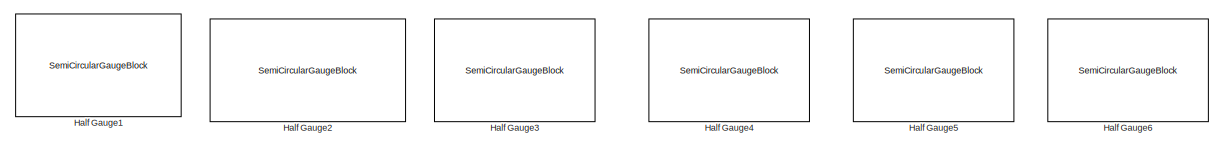
[diagram: root canvas - part 1/5, top right region]
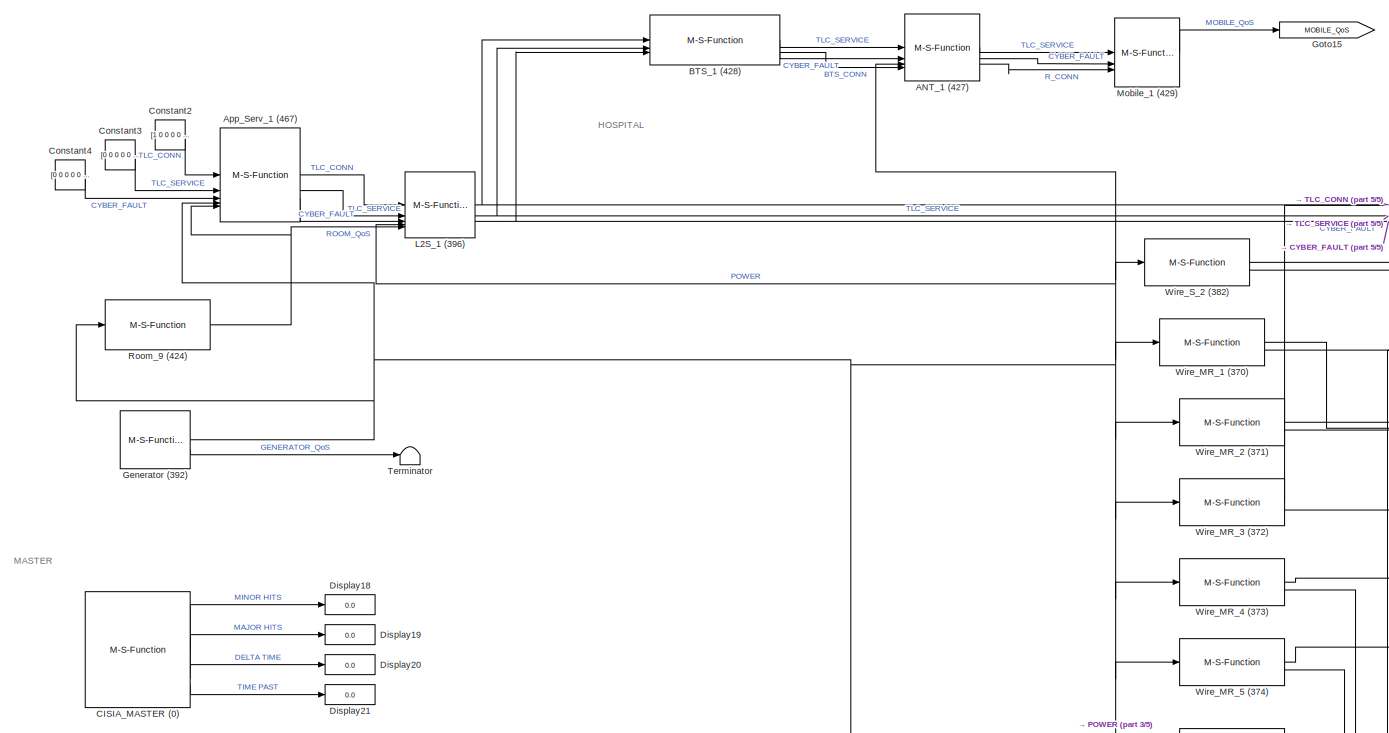
[diagram: root canvas - part 2/5, top left region]
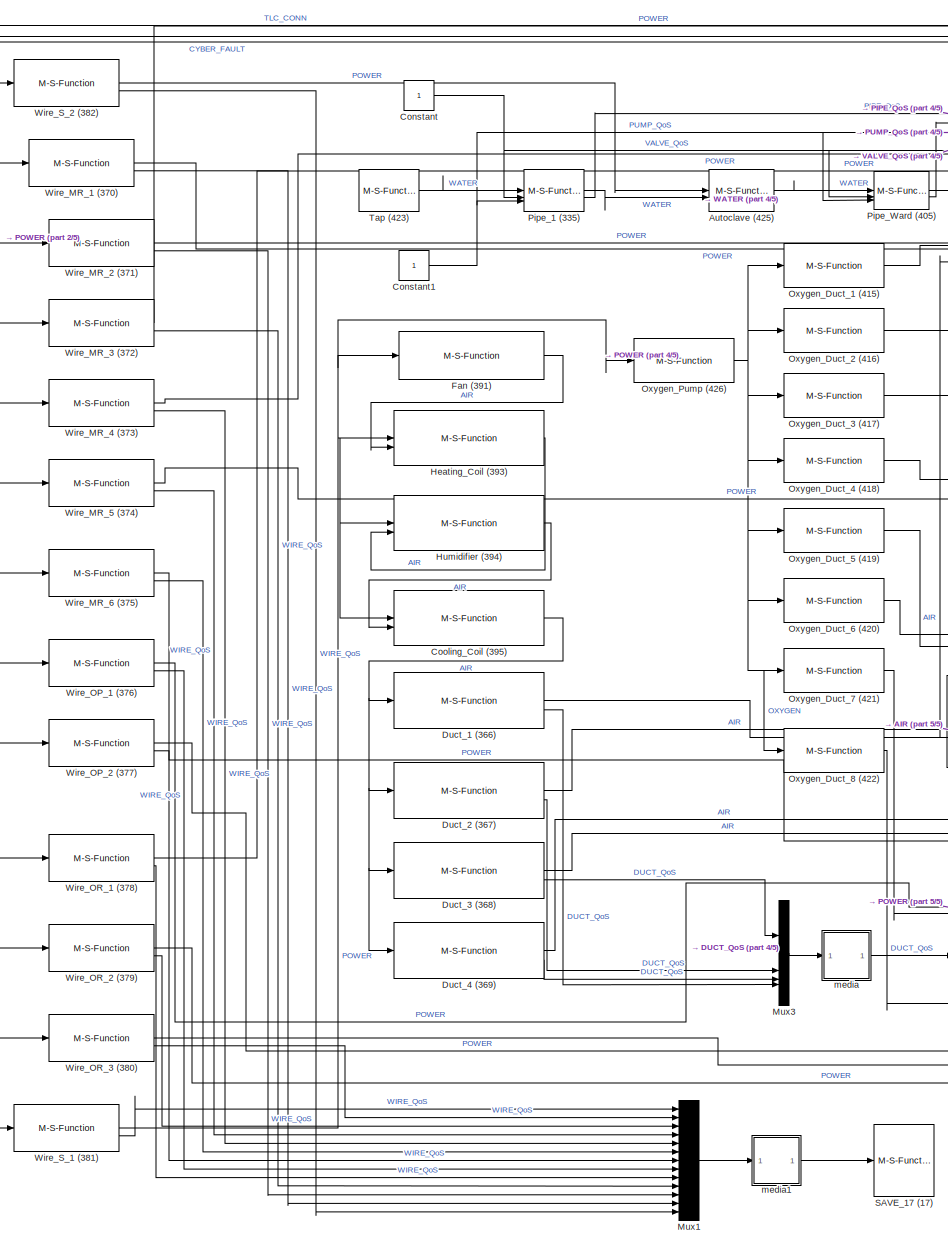
[diagram: root canvas - part 3/5, center side, full height]
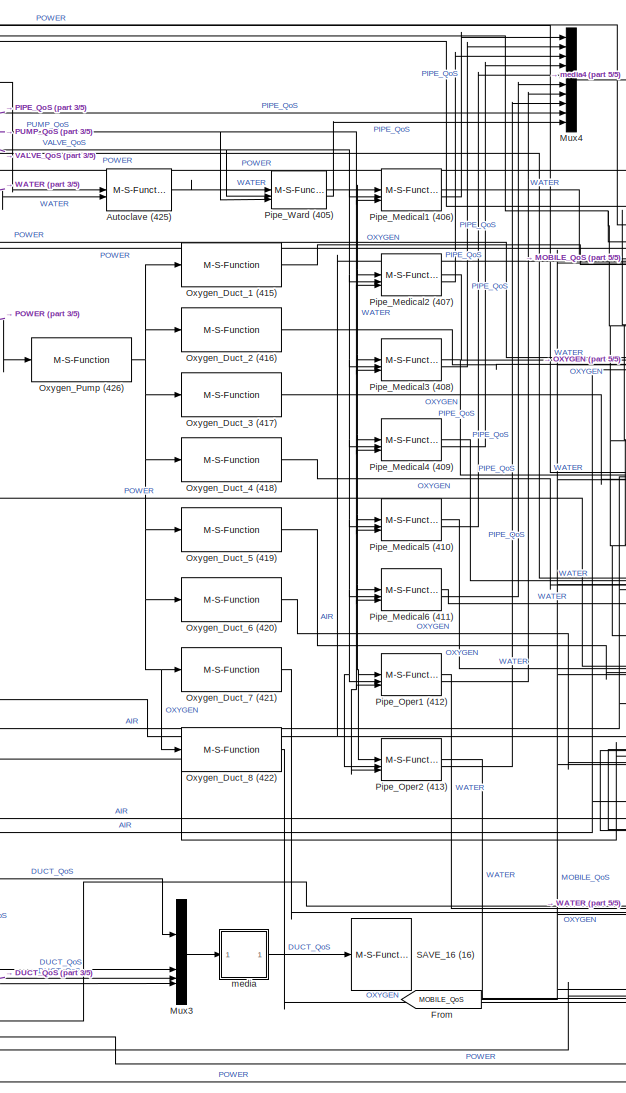
[diagram: root canvas - part 4/5, center side, full height]
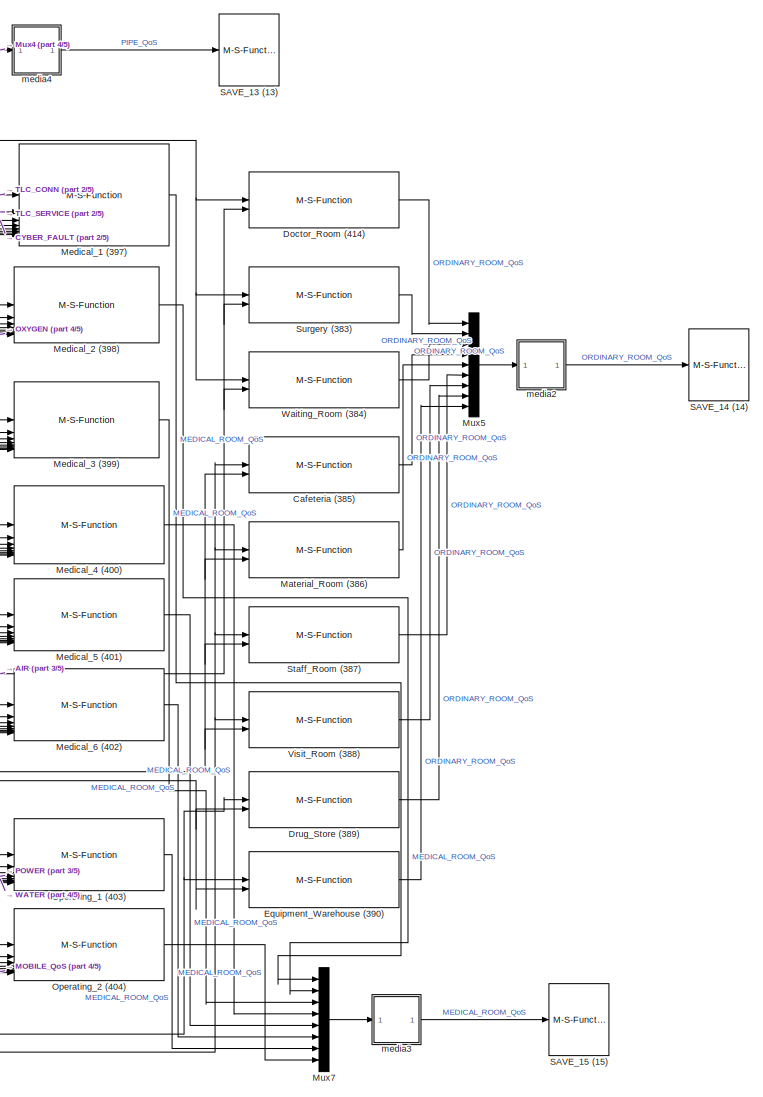
[diagram: root canvas - part 5/5, right side, full height]
MODEL slx_d2d2a2288654
KIND model
CONFIG AbsTol = auto
CONFIG EnableMultiTasking = off
CONFIG FixedStep = auto
CONFIG MaxStep = auto
CONFIG MinStep = auto
CONFIG RelTol = 1e-3
CONFIG SampleTimeConstraint = Unconstrained
CONFIG SolverName = VariableStepAuto
CONFIG StartTime = 0.0
CONFIG StopTime = 10.0
BLOCK [M-S-Function] ANT_1 (427)
  FunctionName = cisia_msfun
  Parameters = Parameter1, Parameter2, Parameter3, resources, Parameter10, codeupdate, step_received, step_computed, dynamic_computed, step_sended, id_entity, id_project, id_type, name_type, color
BLOCK [M-S-Function] App_Serv_1 (467)
  FunctionName = cisia_msfun
  Parameters = Parameter1, Parameter2, Parameter3, resources, Parameter10, codeupdate, step_received, step_computed, dynamic_computed, step_sended, id_entity, id_project, id_type, name_type, color
BLOCK [M-S-Function] Autoclave (425)
  FunctionName = cisia_msfun
  Parameters = Parameter1, Parameter2, Parameter3, resources, Parameter10, codeupdate, step_received, step_computed, dynamic_computed, step_sended, id_entity, id_project, id_type, name_type, color
BLOCK [M-S-Function] BTS_1 (428)
  FunctionName = cisia_msfun
  Parameters = Parameter1, Parameter2, Parameter3, resources, Parameter10, codeupdate, step_received, step_computed, dynamic_computed, step_sended, id_entity, id_project, id_type, name_type, color
BLOCK [M-S-Function] CISIA_MASTER (0)
  FunctionName = cisia_msfun
  Parameters = Parameter1, Parameter2, Parameter3, resources, Parameter4, Parameter5, Parameter6, Parameter7, Parameter8, Parameter9,Parameter11,Parameter12
BLOCK [M-S-Function] Cafeteria (385)
  FunctionName = cisia_msfun
  Parameters = Parameter1, Parameter2, Parameter3, resources, Parameter10, codeupdate, step_received, step_computed, dynamic_computed, step_sended, id_entity, id_project, id_type, name_type, color
BLOCK [Constant] Constant
BLOCK [Constant] Constant1
BLOCK [Constant] Constant2
  Value = [1 0 0 0 0 0 0 0 0 0 0 0 0 0 0 0 0 0 0 0]
BLOCK [Constant] Constant3
  Value = [0 0 0 0 0 0 0 0 0 0 0 0 0 0 0 0 0 0 0 0]
BLOCK [Constant] Constant4
  Value = [0 0 0 0 0 0 0 0 0 0]
BLOCK [M-S-Function] Cooling_Coil (395)
  FunctionName = cisia_msfun
  Parameters = Parameter1, Parameter2, Parameter3, resources, Parameter10, codeupdate, step_received, step_computed, dynamic_computed, step_sended, id_entity, id_project, id_type, name_type, color
BLOCK [Display] Display18
  Decimation = 1
BLOCK [Display] Display19
  Decimation = 1
BLOCK [Display] Display20
  Decimation = 1
BLOCK [Display] Display21
  Decimation = 1
BLOCK [M-S-Function] Doctor_Room (414)
  FunctionName = cisia_msfun
  Parameters = Parameter1, Parameter2, Parameter3, resources, Parameter10, codeupdate, step_received, step_computed, dynamic_computed, step_sended, id_entity, id_project, id_type, name_type, color
BLOCK [M-S-Function] Drug_Store (389)
  FunctionName = cisia_msfun
  Parameters = Parameter1, Parameter2, Parameter3, resources, Parameter10, codeupdate, step_received, step_computed, dynamic_computed, step_sended, id_entity, id_project, id_type, name_type, color
BLOCK [M-S-Function] Duct_1 (366)
  FunctionName = cisia_msfun
  Parameters = Parameter1, Parameter2, Parameter3, resources, Parameter10, codeupdate, step_received, step_computed, dynamic_computed, step_sended, id_entity, id_project, id_type, name_type, color
BLOCK [M-S-Function] Duct_2 (367)
  FunctionName = cisia_msfun
  Parameters = Parameter1, Parameter2, Parameter3, resources, Parameter10, codeupdate, step_received, step_computed, dynamic_computed, step_sended, id_entity, id_project, id_type, name_type, color
BLOCK [M-S-Function] Duct_3 (368)
  FunctionName = cisia_msfun
  Parameters = Parameter1, Parameter2, Parameter3, resources, Parameter10, codeupdate, step_received, step_computed, dynamic_computed, step_sended, id_entity, id_project, id_type, name_type, color
BLOCK [M-S-Function] Duct_4 (369)
  FunctionName = cisia_msfun
  Parameters = Parameter1, Parameter2, Parameter3, resources, Parameter10, codeupdate, step_received, step_computed, dynamic_computed, step_sended, id_entity, id_project, id_type, name_type, color
BLOCK [M-S-Function] Equipment_Warehouse (390)
  FunctionName = cisia_msfun
  Parameters = Parameter1, Parameter2, Parameter3, resources, Parameter10, codeupdate, step_received, step_computed, dynamic_computed, step_sended, id_entity, id_project, id_type, name_type, color
BLOCK [M-S-Function] Fan (391)
  FunctionName = cisia_msfun
  Parameters = Parameter1, Parameter2, Parameter3, resources, Parameter10, codeupdate, step_received, step_computed, dynamic_computed, step_sended, id_entity, id_project, id_type, name_type, color
BLOCK [From] From
  GotoTag = MOBILE_QoS
BLOCK [M-S-Function] Generator (392)
  FunctionName = cisia_msfun
  Parameters = Parameter1, Parameter2, Parameter3, resources, Parameter10, codeupdate, step_received, step_computed, dynamic_computed, step_sended, id_entity, id_project, id_type, name_type, color
BLOCK [Goto] Goto15
  GotoTag = MOBILE_QoS
BLOCK [SemiCircularGaugeBlock] Half Gauge1
  ScaleMax = 1
BLOCK [SemiCircularGaugeBlock] Half Gauge2
  ScaleMax = 1
BLOCK [SemiCircularGaugeBlock] Half Gauge3
  ScaleMax = 1
BLOCK [SemiCircularGaugeBlock] Half Gauge4
  ScaleMax = 1
BLOCK [SemiCircularGaugeBlock] Half Gauge5
  ScaleMax = 1
BLOCK [SemiCircularGaugeBlock] Half Gauge6
  ScaleMax = 1
BLOCK [M-S-Function] Heating_Coil (393)
  FunctionName = cisia_msfun
  Parameters = Parameter1, Parameter2, Parameter3, resources, Parameter10, codeupdate, step_received, step_computed, dynamic_computed, step_sended, id_entity, id_project, id_type, name_type, color
BLOCK [M-S-Function] Humidifier (394)
  FunctionName = cisia_msfun
  Parameters = Parameter1, Parameter2, Parameter3, resources, Parameter10, codeupdate, step_received, step_computed, dynamic_computed, step_sended, id_entity, id_project, id_type, name_type, color
BLOCK [M-S-Function] L2S_1 (396)
  FunctionName = cisia_msfun
  Parameters = Parameter1, Parameter2, Parameter3, resources, Parameter10, codeupdate, step_received, step_computed, dynamic_computed, step_sended, id_entity, id_project, id_type, name_type, color
BLOCK [M-S-Function] Material_Room (386)
  FunctionName = cisia_msfun
  Parameters = Parameter1, Parameter2, Parameter3, resources, Parameter10, codeupdate, step_received, step_computed, dynamic_computed, step_sended, id_entity, id_project, id_type, name_type, color
BLOCK [M-S-Function] Medical_1 (397)
  FunctionName = cisia_msfun
  Parameters = Parameter1, Parameter2, Parameter3, resources, Parameter10, codeupdate, step_received, step_computed, dynamic_computed, step_sended, id_entity, id_project, id_type, name_type, color
BLOCK [M-S-Function] Medical_2 (398)
  FunctionName = cisia_msfun
  Parameters = Parameter1, Parameter2, Parameter3, resources, Parameter10, codeupdate, step_received, step_computed, dynamic_computed, step_sended, id_entity, id_project, id_type, name_type, color
BLOCK [M-S-Function] Medical_3 (399)
  FunctionName = cisia_msfun
  Parameters = Parameter1, Parameter2, Parameter3, resources, Parameter10, codeupdate, step_received, step_computed, dynamic_computed, step_sended, id_entity, id_project, id_type, name_type, color
BLOCK [M-S-Function] Medical_4 (400)
  FunctionName = cisia_msfun
  Parameters = Parameter1, Parameter2, Parameter3, resources, Parameter10, codeupdate, step_received, step_computed, dynamic_computed, step_sended, id_entity, id_project, id_type, name_type, color
BLOCK [M-S-Function] Medical_5 (401)
  FunctionName = cisia_msfun
  Parameters = Parameter1, Parameter2, Parameter3, resources, Parameter10, codeupdate, step_received, step_computed, dynamic_computed, step_sended, id_entity, id_project, id_type, name_type, color
BLOCK [M-S-Function] Medical_6 (402)
  FunctionName = cisia_msfun
  Parameters = Parameter1, Parameter2, Parameter3, resources, Parameter10, codeupdate, step_received, step_computed, dynamic_computed, step_sended, id_entity, id_project, id_type, name_type, color
BLOCK [M-S-Function] Mobile_1 (429)
  FunctionName = cisia_msfun
  Parameters = Parameter1, Parameter2, Parameter3, resources, Parameter10, codeupdate, step_received, step_computed, dynamic_computed, step_sended, id_entity, id_project, id_type, name_type, color
BLOCK [Mux] Mux1
  DisplayOption = bar
  Inputs = 13
BLOCK [Mux] Mux3
  DisplayOption = bar
BLOCK [Mux] Mux4
  DisplayOption = bar
  Inputs = 10
BLOCK [Mux] Mux5
  DisplayOption = bar
  Inputs = 9
BLOCK [Mux] Mux7
  DisplayOption = bar
  Inputs = 8
BLOCK [M-S-Function] Operating_1 (403)
  FunctionName = cisia_msfun
  Parameters = Parameter1, Parameter2, Parameter3, resources, Parameter10, codeupdate, step_received, step_computed, dynamic_computed, step_sended, id_entity, id_project, id_type, name_type, color
BLOCK [M-S-Function] Operating_2 (404)
  FunctionName = cisia_msfun
  Parameters = Parameter1, Parameter2, Parameter3, resources, Parameter10, codeupdate, step_received, step_computed, dynamic_computed, step_sended, id_entity, id_project, id_type, name_type, color
BLOCK [M-S-Function] Oxygen_Duct_1 (415)
  FunctionName = cisia_msfun
  Parameters = Parameter1, Parameter2, Parameter3, resources, Parameter10, codeupdate, step_received, step_computed, dynamic_computed, step_sended, id_entity, id_project, id_type, name_type, color
BLOCK [M-S-Function] Oxygen_Duct_2 (416)
  FunctionName = cisia_msfun
  Parameters = Parameter1, Parameter2, Parameter3, resources, Parameter10, codeupdate, step_received, step_computed, dynamic_computed, step_sended, id_entity, id_project, id_type, name_type, color
BLOCK [M-S-Function] Oxygen_Duct_3 (417)
  FunctionName = cisia_msfun
  Parameters = Parameter1, Parameter2, Parameter3, resources, Parameter10, codeupdate, step_received, step_computed, dynamic_computed, step_sended, id_entity, id_project, id_type, name_type, color
BLOCK [M-S-Function] Oxygen_Duct_4 (418)
  FunctionName = cisia_msfun
  Parameters = Parameter1, Parameter2, Parameter3, resources, Parameter10, codeupdate, step_received, step_computed, dynamic_computed, step_sended, id_entity, id_project, id_type, name_type, color
BLOCK [M-S-Function] Oxygen_Duct_5 (419)
  FunctionName = cisia_msfun
  Parameters = Parameter1, Parameter2, Parameter3, resources, Parameter10, codeupdate, step_received, step_computed, dynamic_computed, step_sended, id_entity, id_project, id_type, name_type, color
BLOCK [M-S-Function] Oxygen_Duct_6 (420)
  FunctionName = cisia_msfun
  Parameters = Parameter1, Parameter2, Parameter3, resources, Parameter10, codeupdate, step_received, step_computed, dynamic_computed, step_sended, id_entity, id_project, id_type, name_type, color
BLOCK [M-S-Function] Oxygen_Duct_7 (421)
  FunctionName = cisia_msfun
  Parameters = Parameter1, Parameter2, Parameter3, resources, Parameter10, codeupdate, step_received, step_computed, dynamic_computed, step_sended, id_entity, id_project, id_type, name_type, color
BLOCK [M-S-Function] Oxygen_Duct_8 (422)
  FunctionName = cisia_msfun
  Parameters = Parameter1, Parameter2, Parameter3, resources, Parameter10, codeupdate, step_received, step_computed, dynamic_computed, step_sended, id_entity, id_project, id_type, name_type, color
BLOCK [M-S-Function] Oxygen_Pump (426)
  FunctionName = cisia_msfun
  Parameters = Parameter1, Parameter2, Parameter3, resources, Parameter10, codeupdate, step_received, step_computed, dynamic_computed, step_sended, id_entity, id_project, id_type, name_type, color
BLOCK [M-S-Function] Pipe_1 (335)
  FunctionName = cisia_msfun
  Parameters = Parameter1, Parameter2, Parameter3, resources, Parameter10, codeupdate, step_received, step_computed, dynamic_computed, step_sended, id_entity, id_project, id_type, name_type, color
BLOCK [M-S-Function] Pipe_Medical1 (406)
  FunctionName = cisia_msfun
  Parameters = Parameter1, Parameter2, Parameter3, resources, Parameter10, codeupdate, step_received, step_computed, dynamic_computed, step_sended, id_entity, id_project, id_type, name_type, color
BLOCK [M-S-Function] Pipe_Medical2 (407)
  FunctionName = cisia_msfun
  Parameters = Parameter1, Parameter2, Parameter3, resources, Parameter10, codeupdate, step_received, step_computed, dynamic_computed, step_sended, id_entity, id_project, id_type, name_type, color
BLOCK [M-S-Function] Pipe_Medical3 (408)
  FunctionName = cisia_msfun
  Parameters = Parameter1, Parameter2, Parameter3, resources, Parameter10, codeupdate, step_received, step_computed, dynamic_computed, step_sended, id_entity, id_project, id_type, name_type, color
BLOCK [M-S-Function] Pipe_Medical4 (409)
  FunctionName = cisia_msfun
  Parameters = Parameter1, Parameter2, Parameter3, resources, Parameter10, codeupdate, step_received, step_computed, dynamic_computed, step_sended, id_entity, id_project, id_type, name_type, color
BLOCK [M-S-Function] Pipe_Medical5 (410)
  FunctionName = cisia_msfun
  Parameters = Parameter1, Parameter2, Parameter3, resources, Parameter10, codeupdate, step_received, step_computed, dynamic_computed, step_sended, id_entity, id_project, id_type, name_type, color
BLOCK [M-S-Function] Pipe_Medical6 (411)
  FunctionName = cisia_msfun
  Parameters = Parameter1, Parameter2, Parameter3, resources, Parameter10, codeupdate, step_received, step_computed, dynamic_computed, step_sended, id_entity, id_project, id_type, name_type, color
BLOCK [M-S-Function] Pipe_Oper1 (412)
  FunctionName = cisia_msfun
  Parameters = Parameter1, Parameter2, Parameter3, resources, Parameter10, codeupdate, step_received, step_computed, dynamic_computed, step_sended, id_entity, id_project, id_type, name_type, color
BLOCK [M-S-Function] Pipe_Oper2 (413)
  FunctionName = cisia_msfun
  Parameters = Parameter1, Parameter2, Parameter3, resources, Parameter10, codeupdate, step_received, step_computed, dynamic_computed, step_sended, id_entity, id_project, id_type, name_type, color
BLOCK [M-S-Function] Pipe_Ward (405)
  FunctionName = cisia_msfun
  Parameters = Parameter1, Parameter2, Parameter3, resources, Parameter10, codeupdate, step_received, step_computed, dynamic_computed, step_sended, id_entity, id_project, id_type, name_type, color
BLOCK [M-S-Function] Room_9 (424)
  FunctionName = cisia_msfun
  Parameters = Parameter1, Parameter2, Parameter3, resources, Parameter10, codeupdate, step_received, step_computed, dynamic_computed, step_sended, id_entity, id_project, id_type, name_type, color
BLOCK [M-S-Function] SAVE_13 (13)
  FunctionName = cisia_msfun
  Parameters = Parameter1, Parameter2, Parameter3, Parameter4,Parameter5,Parameter6,Parameter7
BLOCK [M-S-Function] SAVE_14 (14)
  FunctionName = cisia_msfun
  Parameters = Parameter1, Parameter2, Parameter3, Parameter4,Parameter5,Parameter6,Parameter7
BLOCK [M-S-Function] SAVE_15 (15)
  FunctionName = cisia_msfun
  Parameters = Parameter1, Parameter2, Parameter3, Parameter4,Parameter5,Parameter6,Parameter7
BLOCK [M-S-Function] SAVE_16 (16)
  FunctionName = cisia_msfun
  Parameters = Parameter1, Parameter2, Parameter3, Parameter4,Parameter5,Parameter6,Parameter7
BLOCK [M-S-Function] SAVE_17 (17)
  FunctionName = cisia_msfun
  Parameters = Parameter1, Parameter2, Parameter3, Parameter4,Parameter5,Parameter6,Parameter7
BLOCK [M-S-Function] Staff_Room (387)
  FunctionName = cisia_msfun
  Parameters = Parameter1, Parameter2, Parameter3, resources, Parameter10, codeupdate, step_received, step_computed, dynamic_computed, step_sended, id_entity, id_project, id_type, name_type, color
BLOCK [M-S-Function] Surgery (383)
  FunctionName = cisia_msfun
  Parameters = Parameter1, Parameter2, Parameter3, resources, Parameter10, codeupdate, step_received, step_computed, dynamic_computed, step_sended, id_entity, id_project, id_type, name_type, color
BLOCK [M-S-Function] Tap (423)
  FunctionName = cisia_msfun
  Parameters = Parameter1, Parameter2, Parameter3, resources, Parameter10, codeupdate, step_received, step_computed, dynamic_computed, step_sended, id_entity, id_project, id_type, name_type, color
BLOCK [Terminator] Terminator
BLOCK [M-S-Function] Visit_Room (388)
  FunctionName = cisia_msfun
  Parameters = Parameter1, Parameter2, Parameter3, resources, Parameter10, codeupdate, step_received, step_computed, dynamic_computed, step_sended, id_entity, id_project, id_type, name_type, color
BLOCK [M-S-Function] Waiting_Room (384)
  FunctionName = cisia_msfun
  Parameters = Parameter1, Parameter2, Parameter3, resources, Parameter10, codeupdate, step_received, step_computed, dynamic_computed, step_sended, id_entity, id_project, id_type, name_type, color
BLOCK [M-S-Function] Wire_MR_1 (370)
  FunctionName = cisia_msfun
  Parameters = Parameter1, Parameter2, Parameter3, resources, Parameter10, codeupdate, step_received, step_computed, dynamic_computed, step_sended, id_entity, id_project, id_type, name_type, color
BLOCK [M-S-Function] Wire_MR_2 (371)
  FunctionName = cisia_msfun
  Parameters = Parameter1, Parameter2, Parameter3, resources, Parameter10, codeupdate, step_received, step_computed, dynamic_computed, step_sended, id_entity, id_project, id_type, name_type, color
BLOCK [M-S-Function] Wire_MR_3 (372)
  FunctionName = cisia_msfun
  Parameters = Parameter1, Parameter2, Parameter3, resources, Parameter10, codeupdate, step_received, step_computed, dynamic_computed, step_sended, id_entity, id_project, id_type, name_type, color
BLOCK [M-S-Function] Wire_MR_4 (373)
  FunctionName = cisia_msfun
  Parameters = Parameter1, Parameter2, Parameter3, resources, Parameter10, codeupdate, step_received, step_computed, dynamic_computed, step_sended, id_entity, id_project, id_type, name_type, color
BLOCK [M-S-Function] Wire_MR_5 (374)
  FunctionName = cisia_msfun
  Parameters = Parameter1, Parameter2, Parameter3, resources, Parameter10, codeupdate, step_received, step_computed, dynamic_computed, step_sended, id_entity, id_project, id_type, name_type, color
BLOCK [M-S-Function] Wire_MR_6 (375)
  FunctionName = cisia_msfun
  Parameters = Parameter1, Parameter2, Parameter3, resources, Parameter10, codeupdate, step_received, step_computed, dynamic_computed, step_sended, id_entity, id_project, id_type, name_type, color
BLOCK [M-S-Function] Wire_OP_1 (376)
  FunctionName = cisia_msfun
  Parameters = Parameter1, Parameter2, Parameter3, resources, Parameter10, codeupdate, step_received, step_computed, dynamic_computed, step_sended, id_entity, id_project, id_type, name_type, color
BLOCK [M-S-Function] Wire_OP_2 (377)
  FunctionName = cisia_msfun
  Parameters = Parameter1, Parameter2, Parameter3, resources, Parameter10, codeupdate, step_received, step_computed, dynamic_computed, step_sended, id_entity, id_project, id_type, name_type, color
BLOCK [M-S-Function] Wire_OR_1 (378)
  FunctionName = cisia_msfun
  Parameters = Parameter1, Parameter2, Parameter3, resources, Parameter10, codeupdate, step_received, step_computed, dynamic_computed, step_sended, id_entity, id_project, id_type, name_type, color
BLOCK [M-S-Function] Wire_OR_2 (379)
  FunctionName = cisia_msfun
  Parameters = Parameter1, Parameter2, Parameter3, resources, Parameter10, codeupdate, step_received, step_computed, dynamic_computed, step_sended, id_entity, id_project, id_type, name_type, color
BLOCK [M-S-Function] Wire_OR_3 (380)
  FunctionName = cisia_msfun
  Parameters = Parameter1, Parameter2, Parameter3, resources, Parameter10, codeupdate, step_received, step_computed, dynamic_computed, step_sended, id_entity, id_project, id_type, name_type, color
BLOCK [M-S-Function] Wire_S_1 (381)
  FunctionName = cisia_msfun
  Parameters = Parameter1, Parameter2, Parameter3, resources, Parameter10, codeupdate, step_received, step_computed, dynamic_computed, step_sended, id_entity, id_project, id_type, name_type, color
BLOCK [M-S-Function] Wire_S_2 (382)
  FunctionName = cisia_msfun
  Parameters = Parameter1, Parameter2, Parameter3, resources, Parameter10, codeupdate, step_received, step_computed, dynamic_computed, step_sended, id_entity, id_project, id_type, name_type, color
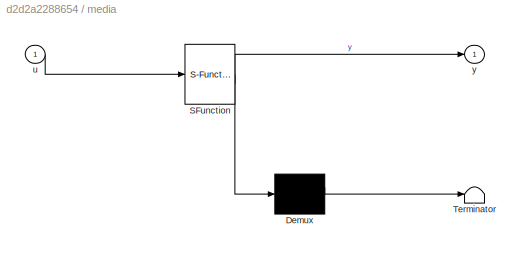
BLOCK [SubSystem] media
  ErrorFcn = Stateflow.Translate.translate
  LibrarySourceBlock = simulink/User-Defined\nFunctions/MATLAB Function
  PermitHierarchicalResolution = ExplicitOnly
  SFBlockType = MATLAB Function
  TreatAsAtomicUnit = on
BLOCK [Demux] media/ Demux 
  Outputs = 1
BLOCK [S-Function] media/ SFunction 
  EnableBusSupport = on
  FunctionName = sf_sfun
  PortCounts = [1 2]
  SFcnIsStateOwnerBlock = off
  SFunctionDeploymentMode = off
  Tag = Stateflow S-Function 2
BLOCK [Terminator] media/ Terminator 
BLOCK [Inport] media/u
BLOCK [Outport] media/y
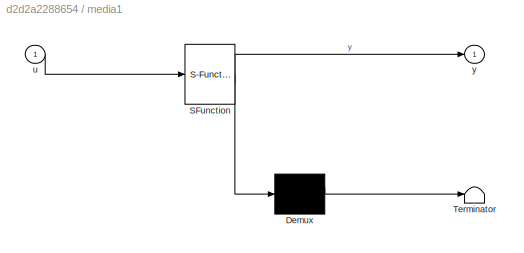
BLOCK [SubSystem] media1
  ErrorFcn = Stateflow.Translate.translate
  LibrarySourceBlock = simulink/User-Defined\nFunctions/MATLAB Function
  PermitHierarchicalResolution = ExplicitOnly
  SFBlockType = MATLAB Function
  TreatAsAtomicUnit = on
BLOCK [Demux] media1/ Demux 
  Outputs = 1
BLOCK [S-Function] media1/ SFunction 
  EnableBusSupport = on
  FunctionName = sf_sfun
  PortCounts = [1 2]
  SFcnIsStateOwnerBlock = off
  SFunctionDeploymentMode = off
  Tag = Stateflow S-Function 1
BLOCK [Terminator] media1/ Terminator 
BLOCK [Inport] media1/u
BLOCK [Outport] media1/y
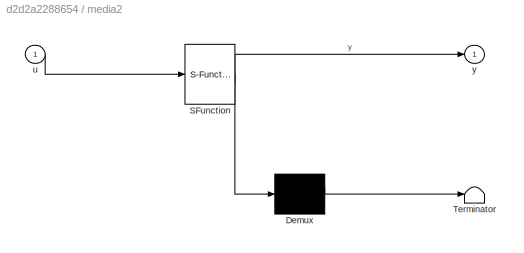
BLOCK [SubSystem] media2
  ErrorFcn = Stateflow.Translate.translate
  LibrarySourceBlock = simulink/User-Defined\nFunctions/MATLAB Function
  PermitHierarchicalResolution = ExplicitOnly
  SFBlockType = MATLAB Function
  TreatAsAtomicUnit = on
BLOCK [Demux] media2/ Demux 
  Outputs = 1
BLOCK [S-Function] media2/ SFunction 
  EnableBusSupport = on
  FunctionName = sf_sfun
  PortCounts = [1 2]
  SFcnIsStateOwnerBlock = off
  SFunctionDeploymentMode = off
  Tag = Stateflow S-Function 3
BLOCK [Terminator] media2/ Terminator 
BLOCK [Inport] media2/u
BLOCK [Outport] media2/y
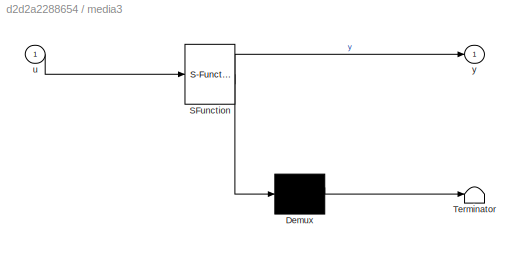
BLOCK [SubSystem] media3
  ErrorFcn = Stateflow.Translate.translate
  LibrarySourceBlock = simulink/User-Defined\nFunctions/MATLAB Function
  PermitHierarchicalResolution = ExplicitOnly
  SFBlockType = MATLAB Function
  TreatAsAtomicUnit = on
BLOCK [Demux] media3/ Demux 
  Outputs = 1
BLOCK [S-Function] media3/ SFunction 
  EnableBusSupport = on
  FunctionName = sf_sfun
  PortCounts = [1 2]
  SFcnIsStateOwnerBlock = off
  SFunctionDeploymentMode = off
  Tag = Stateflow S-Function 4
BLOCK [Terminator] media3/ Terminator 
BLOCK [Inport] media3/u
BLOCK [Outport] media3/y
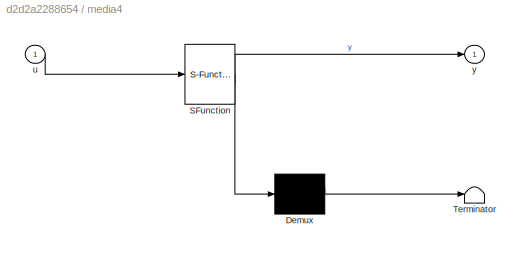
BLOCK [SubSystem] media4
  ErrorFcn = Stateflow.Translate.translate
  LibrarySourceBlock = simulink/User-Defined\nFunctions/MATLAB Function
  PermitHierarchicalResolution = ExplicitOnly
  SFBlockType = MATLAB Function
  TreatAsAtomicUnit = on
BLOCK [Demux] media4/ Demux 
  Outputs = 1
BLOCK [S-Function] media4/ SFunction 
  EnableBusSupport = on
  FunctionName = sf_sfun
  PortCounts = [1 2]
  SFcnIsStateOwnerBlock = off
  SFunctionDeploymentMode = off
  Tag = Stateflow S-Function 5
BLOCK [Terminator] media4/ Terminator 
BLOCK [Inport] media4/u
BLOCK [Outport] media4/y
ANNOTATION (root): HOSPITAL
ANNOTATION (root): MASTER
LINE ANT_1 (427):1 -> Mobile_1 (429):1
LINE ANT_1 (427):2 -> Mobile_1 (429):2
LINE ANT_1 (427):3 -> Mobile_1 (429):3
LINE App_Serv_1 (467):1 -> L2S_1 (396):1
LINE App_Serv_1 (467):2 -> L2S_1 (396):2
LINE App_Serv_1 (467):3 -> L2S_1 (396):3
LINE Autoclave (425):1 -> Pipe_Ward (405):1
LINE BTS_1 (428):1 -> ANT_1 (427):1
LINE BTS_1 (428):2 -> ANT_1 (427):2
LINE BTS_1 (428):3 -> ANT_1 (427):4
LINE CISIA_MASTER (0):1 -> Display18:1
LINE CISIA_MASTER (0):2 -> Display19:1
LINE CISIA_MASTER (0):3 -> Display20:1
LINE CISIA_MASTER (0):4 -> Display21:1
LINE Cafeteria (385):1 -> Mux5:4
NET Constant1:1 -> Pipe_1 (335):3, Pipe_Medical1 (406):3, Pipe_Medical2 (407):3, Pipe_Medical3 (408):3, Pipe_Medical4 (409):3, Pipe_Medical5 (410):3, Pipe_Medical6 (411):3, Pipe_Oper1 (412):3, Pipe_Oper2 (413):3, Pipe_Ward (405):3
LINE Constant2:1 -> App_Serv_1 (467):1
LINE Constant3:1 -> App_Serv_1 (467):2
LINE Constant4:1 -> App_Serv_1 (467):3
NET Constant:1 -> Pipe_1 (335):2, Pipe_Medical1 (406):2, Pipe_Medical2 (407):2, Pipe_Medical3 (408):2, Pipe_Medical4 (409):2, Pipe_Medical5 (410):2, Pipe_Medical6 (411):2, Pipe_Oper1 (412):2, Pipe_Oper2 (413):2, Pipe_Ward (405):2
NET Cooling_Coil (395):1 -> Duct_1 (366):1, Duct_2 (367):1, Duct_3 (368):1, Duct_4 (369):1
LINE Doctor_Room (414):1 -> Mux5:1
LINE Drug_Store (389):1 -> Mux5:8
NET Duct_1 (366):1 -> Medical_1 (397):6, Operating_1 (403):6, Operating_2 (404):6
LINE Duct_1 (366):2 -> Mux3:4
NET Duct_2 (367):1 -> Doctor_Room (414):2, Medical_3 (399):6, Medical_4 (400):6, Surgery (383):2, Waiting_Room (384):2
LINE Duct_2 (367):2 -> Mux3:2
NET Duct_3 (368):1 -> Cafeteria (385):2, Material_Room (386):2, Medical_2 (398):6, Staff_Room (387):2, Visit_Room (388):2
LINE Duct_3 (368):2 -> Mux3:1
NET Duct_4 (369):1 -> Drug_Store (389):2, Equipment_Warehouse (390):2, Medical_5 (401):6, Medical_6 (402):6
LINE Duct_4 (369):2 -> Mux3:3
LINE Equipment_Warehouse (390):1 -> Mux5:9
LINE Fan (391):1 -> Heating_Coil (393):2
NET From:1 -> Medical_1 (397):7, Medical_2 (398):7, Medical_3 (399):7, Medical_4 (400):7, Medical_5 (401):7, Medical_6 (402):7, Operating_1 (403):7, Operating_2 (404):7
NET Generator (392):1 -> ANT_1 (427):3, App_Serv_1 (467):4, L2S_1 (396):4, Room_9 (424):1, Wire_MR_1 (370):1, Wire_MR_2 (371):1, Wire_MR_3 (372):1, Wire_MR_4 (373):1, Wire_MR_5 (374):1, Wire_MR_6 (375):1, Wire_OP_1 (376):1, Wire_OP_2 (377):1, Wire_OR_1 (378):1, Wire_OR_2 (379):1, Wire_OR_3 (380):1, Wire_S_1 (381):1, Wire_S_2 (382):1
LINE Generator (392):2 -> Terminator:1
LINE Heating_Coil (393):1 -> Humidifier (394):2
LINE Humidifier (394):1 -> Cooling_Coil (395):2
NET L2S_1 (396):1 -> BTS_1 (428):1, Medical_1 (397):1, Medical_2 (398):1, Medical_3 (399):1, Medical_4 (400):1, Medical_5 (401):1, Medical_6 (402):1, Operating_1 (403):1, Operating_2 (404):1
NET L2S_1 (396):2 -> BTS_1 (428):2, Medical_1 (397):2, Medical_2 (398):2, Medical_3 (399):2, Medical_4 (400):2, Medical_5 (401):2, Medical_6 (402):2, Operating_1 (403):2, Operating_2 (404):2
NET L2S_1 (396):3 -> BTS_1 (428):3, Medical_1 (397):3, Medical_2 (398):3, Medical_3 (399):3, Medical_4 (400):3, Medical_5 (401):3, Medical_6 (402):3, Operating_1 (403):3, Operating_2 (404):3
LINE Material_Room (386):1 -> Mux5:5
LINE Medical_1 (397):1 -> Mux7:1
LINE Medical_2 (398):1 -> Mux7:2
LINE Medical_3 (399):1 -> Mux7:3
LINE Medical_4 (400):1 -> Mux7:4
LINE Medical_5 (401):1 -> Mux7:5
LINE Medical_6 (402):1 -> Mux7:6
LINE Mobile_1 (429):1 -> Goto15:1
LINE Mux1:1 -> media1:1
LINE Mux3:1 -> media:1
LINE Mux4:1 -> media4:1
LINE Mux5:1 -> media2:1
LINE Mux7:1 -> media3:1
LINE Operating_1 (403):1 -> Mux7:7
LINE Operating_2 (404):1 -> Mux7:8
LINE Oxygen_Duct_1 (415):1 -> Medical_1 (397):8
LINE Oxygen_Duct_2 (416):1 -> Medical_2 (398):8
LINE Oxygen_Duct_3 (417):1 -> Medical_3 (399):8
LINE Oxygen_Duct_4 (418):1 -> Medical_4 (400):8
LINE Oxygen_Duct_5 (419):1 -> Medical_5 (401):8
LINE Oxygen_Duct_6 (420):1 -> Medical_6 (402):8
LINE Oxygen_Duct_7 (421):1 -> Operating_1 (403):8
LINE Oxygen_Duct_8 (422):1 -> Operating_2 (404):8
NET Oxygen_Pump (426):1 -> Oxygen_Duct_1 (415):1, Oxygen_Duct_2 (416):1, Oxygen_Duct_3 (417):1, Oxygen_Duct_4 (418):1, Oxygen_Duct_5 (419):1, Oxygen_Duct_6 (420):1, Oxygen_Duct_7 (421):1, Oxygen_Duct_8 (422):1
LINE Pipe_1 (335):1 -> Autoclave (425):2
LINE Pipe_1 (335):2 -> Mux4:9
LINE Pipe_Medical1 (406):1 -> Medical_1 (397):5
LINE Pipe_Medical1 (406):2 -> Mux4:1
LINE Pipe_Medical2 (407):1 -> Medical_2 (398):5
LINE Pipe_Medical2 (407):2 -> Mux4:3
LINE Pipe_Medical3 (408):1 -> Medical_3 (399):5
LINE Pipe_Medical3 (408):2 -> Mux4:2
LINE Pipe_Medical4 (409):1 -> Medical_4 (400):5
LINE Pipe_Medical4 (409):2 -> Mux4:4
LINE Pipe_Medical5 (410):1 -> Medical_5 (401):5
LINE Pipe_Medical5 (410):2 -> Mux4:5
LINE Pipe_Medical6 (411):1 -> Medical_6 (402):5
LINE Pipe_Medical6 (411):2 -> Mux4:6
LINE Pipe_Oper1 (412):1 -> Operating_1 (403):5
LINE Pipe_Oper1 (412):2 -> Mux4:7
LINE Pipe_Oper2 (413):1 -> Operating_2 (404):5
LINE Pipe_Oper2 (413):2 -> Mux4:8
NET Pipe_Ward (405):1 -> Pipe_Medical1 (406):1, Pipe_Medical2 (407):1, Pipe_Medical3 (408):1, Pipe_Medical4 (409):1, Pipe_Medical5 (410):1, Pipe_Medical6 (411):1, Pipe_Oper1 (412):1, Pipe_Oper2 (413):1
LINE Pipe_Ward (405):2 -> Mux4:10
NET Room_9 (424):1 -> App_Serv_1 (467):5, L2S_1 (396):5
LINE Staff_Room (387):1 -> Mux5:6
LINE Surgery (383):1 -> Mux5:2
LINE Tap (423):1 -> Pipe_1 (335):1
LINE Visit_Room (388):1 -> Mux5:7
LINE Waiting_Room (384):1 -> Mux5:3
LINE Wire_MR_1 (370):1 -> Medical_1 (397):4
LINE Wire_MR_1 (370):2 -> Mux1:12
LINE Wire_MR_2 (371):1 -> Medical_2 (398):4
LINE Wire_MR_2 (371):2 -> Mux1:11
LINE Wire_MR_3 (372):1 -> Medical_3 (399):4
LINE Wire_MR_3 (372):2 -> Mux1:10
LINE Wire_MR_4 (373):1 -> Medical_4 (400):4
LINE Wire_MR_4 (373):2 -> Mux1:5
LINE Wire_MR_5 (374):1 -> Medical_5 (401):4
LINE Wire_MR_5 (374):2 -> Mux1:4
LINE Wire_MR_6 (375):1 -> Medical_6 (402):4
LINE Wire_MR_6 (375):2 -> Mux1:6
LINE Wire_OP_1 (376):1 -> Operating_1 (403):4
LINE Wire_OP_1 (376):2 -> Mux1:8
LINE Wire_OP_2 (377):1 -> Operating_2 (404):4
LINE Wire_OP_2 (377):2 -> Mux1:7
NET Wire_OR_1 (378):1 -> Doctor_Room (414):1, Surgery (383):1, Waiting_Room (384):1
LINE Wire_OR_1 (378):2 -> Mux1:9
NET Wire_OR_2 (379):1 -> Cafeteria (385):1, Material_Room (386):1, Staff_Room (387):1, Visit_Room (388):1
LINE Wire_OR_2 (379):2 -> Mux1:3
NET Wire_OR_3 (380):1 -> Drug_Store (389):1, Equipment_Warehouse (390):1
LINE Wire_OR_3 (380):2 -> Mux1:2
NET Wire_S_1 (381):1 -> Cooling_Coil (395):1, Fan (391):1, Heating_Coil (393):1, Humidifier (394):1, Oxygen_Pump (426):1
LINE Wire_S_1 (381):2 -> Mux1:1
LINE Wire_S_2 (382):1 -> Autoclave (425):1
LINE Wire_S_2 (382):2 -> Mux1:13
LINE media1:1 -> SAVE_17 (17):1
LINE media2:1 -> SAVE_14 (14):1
LINE media3:1 -> SAVE_15 (15):1
LINE media4:1 -> SAVE_13 (13):1
LINE media:1 -> SAVE_16 (16):1
note: NET lines group one-source signal fan-out (src -> all destinations, sorted); 1:1 wires keep LINE
CHART media states=1 transitions=1
  STATE_LABEL 'eML_blk_kernel()'
  STATE_LABEL 'SCRIPT:\nfunction y = media(u)\n\ny = mean(u);\n'
CHART media2 states=1 transitions=1
  STATE_LABEL 'eML_blk_kernel()'
  STATE_LABEL 'SCRIPT:\nfunction y = media(u)\n\ny = mean(u);\n'
CHART media3 states=1 transitions=1
  STATE_LABEL 'eML_blk_kernel()'
  STATE_LABEL 'SCRIPT:\nfunction y = media(u)\n\ny = mean(u);\n'
CHART media4 states=1 transitions=1
  STATE_LABEL 'eML_blk_kernel()'
  STATE_LABEL 'SCRIPT:\nfunction y = media(u)\n\ny = mean(u);\n'
CHART media1 states=1 transitions=1
  STATE_LABEL 'eML_blk_kernel()'
  STATE_LABEL 'SCRIPT:\nfunction y = media(u)\n\ny = mean(u);\n'
CHART  states=0 transitions=0
CHART  states=0 transitions=0
CHART  states=0 transitions=0
CHART  states=0 transitions=0
CHART  states=0 transitions=0
